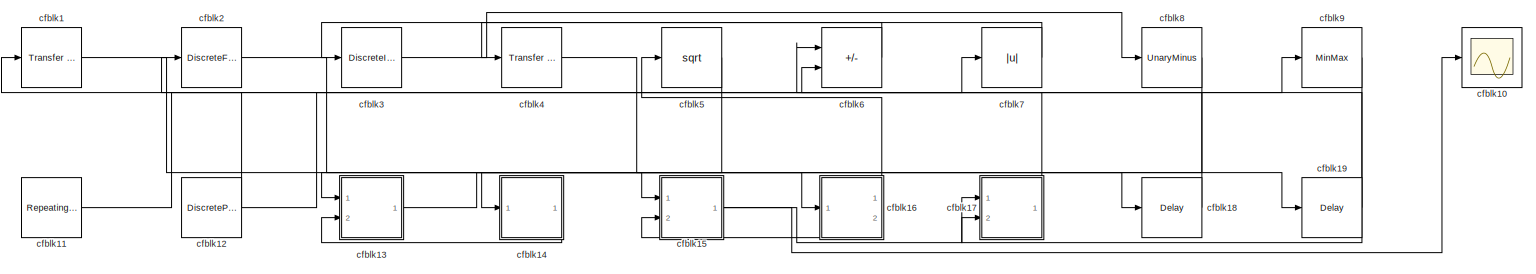
[diagram: root canvas - part 1/1, most of the canvas]
MODEL slx_5b7d6bf338a1
KIND model
CONFIG AbsTol = auto
CONFIG EnableMultiTasking = off
CONFIG FixedStep = auto
CONFIG MaxStep = auto
CONFIG MinStep = auto
CONFIG RelTol = 1e-3
CONFIG SampleTimeConstraint = Unconstrained
CONFIG SolverName = VariableStepAuto
CONFIG StartTime = 0.0
CONFIG StopTime = 10.0
BLOCK [Reference] cfblk1  REF=simulink/Discrete/Transfer Fcn
First Order
  Ports = [1, 1]
  SourceBlock = simulink/Discrete/Transfer Fcn\nFirst Order
  SourceProductBaseCode = SL
  SourceType = First Order Transfer Fcn
BLOCK [Scope] cfblk10
  Floating = off
  NumInputPorts = 1
  Ports = [1]
BLOCK [Reference] cfblk11  REF=simulink/Sources/Repeating
Sequence
  Ports = [0, 1]
  SourceBlock = simulink/Sources/Repeating\nSequence
  SourceProductBaseCode = SL
  SourceType = Repeating table
BLOCK [DiscretePulseGenerator] cfblk12
  Amplitude = [-881362377.739357]
  Period = [75781742.287190]
  PhaseDelay = [9.000000]
  Ports = [0, 1]
  PulseType = Time based
  PulseWidth = 5
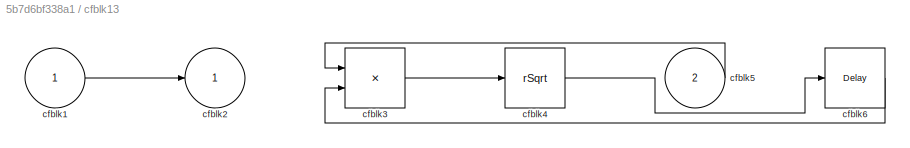
BLOCK [SubSystem] cfblk13
  Ports = [2, 1]
  RequestExecContextInheritance = off
BLOCK [Inport] cfblk13/cfblk1
BLOCK [Outport] cfblk13/cfblk2
BLOCK [Product] cfblk13/cfblk3
  Inputs = **
  Ports = [2, 1]
BLOCK [Sqrt] cfblk13/cfblk4
  AlgorithmType = Newton-Raphson
  Operator = rSqrt
BLOCK [Inport] cfblk13/cfblk5
  Port = 2
BLOCK [Delay] cfblk13/cfblk6
  InputPortMap = u0
  Ports = [1, 1]
  SampleTime = 1
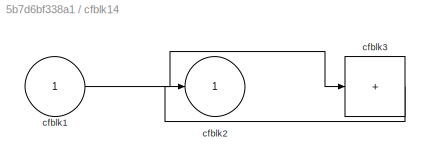
BLOCK [SubSystem] cfblk14
  Ports = [1, 1]
  RequestExecContextInheritance = off
BLOCK [Inport] cfblk14/cfblk1
BLOCK [Outport] cfblk14/cfblk2
BLOCK [Sum] cfblk14/cfblk3
  IconShape = rectangular
  Inputs = +
  Ports = [1, 1]
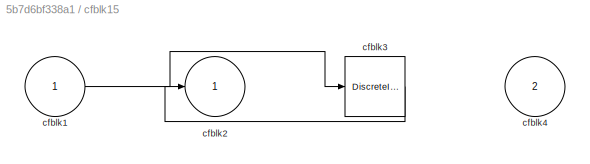
BLOCK [SubSystem] cfblk15
  Ports = [2, 1]
  RequestExecContextInheritance = off
BLOCK [Inport] cfblk15/cfblk1
BLOCK [Outport] cfblk15/cfblk2
BLOCK [DiscreteIntegrator] cfblk15/cfblk3
  ICPrevOutput = DiscIntNeverNeededParam
  ICPrevScaledInput = DiscIntNeverNeededParam
  InitialConditionSetting = Auto
  Ports = [1, 1]
BLOCK [Inport] cfblk15/cfblk4
  Port = 2
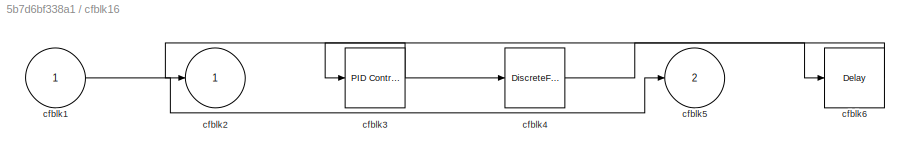
BLOCK [SubSystem] cfblk16
  Ports = [1, 2]
  RequestExecContextInheritance = off
BLOCK [Inport] cfblk16/cfblk1
BLOCK [Outport] cfblk16/cfblk2
BLOCK [Reference] cfblk16/cfblk3  REF=slpidlib/PID Controller
  Ports = [1, 1]
  SourceBlock = slpidlib/PID Controller
  SourceProductBaseCode = SL
  SourceType = PID 1dof
BLOCK [DiscreteFilter] cfblk16/cfblk4
  InputPortMap = u0
  Ports = [1, 1]
  SampleTime = 1
BLOCK [Outport] cfblk16/cfblk5
  Port = 2
BLOCK [Delay] cfblk16/cfblk6
  InputPortMap = u0
  Ports = [1, 1]
  SampleTime = 1
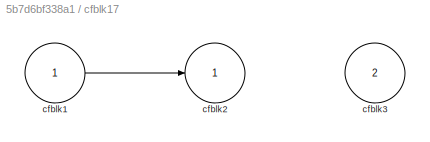
BLOCK [SubSystem] cfblk17
  Ports = [2, 1]
  RequestExecContextInheritance = off
BLOCK [Inport] cfblk17/cfblk1
BLOCK [Outport] cfblk17/cfblk2
BLOCK [Inport] cfblk17/cfblk3
  Port = 2
BLOCK [Delay] cfblk18
  InputPortMap = u0
  Ports = [1, 1]
  SampleTime = 1
BLOCK [Delay] cfblk19
  InputPortMap = u0
  Ports = [1, 1]
  SampleTime = 1
BLOCK [DiscreteFir] cfblk2
  InputPortMap = u0
  OutputPortMap = o0
  Ports = [1, 1]
  SampleTime = 1
BLOCK [DiscreteIntegrator] cfblk3
  ICPrevOutput = DiscIntNeverNeededParam
  ICPrevScaledInput = DiscIntNeverNeededParam
  InitialConditionSetting = Auto
  Ports = [1, 1]
BLOCK [Reference] cfblk4  REF=simulink/Discrete/Transfer Fcn
Lead or Lag
  Ports = [1, 1]
  SourceBlock = simulink/Discrete/Transfer Fcn\nLead or Lag
  SourceProductBaseCode = SL
  SourceType = Lead or Lag Compensator
BLOCK [Sqrt] cfblk5
BLOCK [Sum] cfblk6
  IconShape = rectangular
  Inputs = --
  Ports = [2, 1]
BLOCK [Abs] cfblk7
  SaturateOnIntegerOverflow = off
BLOCK [UnaryMinus] cfblk8
BLOCK [MinMax] cfblk9
  Ports = [1, 1]
LINE cfblk11:1 -> cfblk9:1
NET cfblk12:1 -> cfblk2:1, cfblk7:1
LINE cfblk13/cfblk1:1 -> cfblk13/cfblk2:1
LINE cfblk13/cfblk3:1 -> cfblk13/cfblk4:1
LINE cfblk13/cfblk4:1 -> cfblk13/cfblk6:1
LINE cfblk13/cfblk5:1 -> cfblk13/cfblk3:1
LINE cfblk13/cfblk6:1 -> cfblk13/cfblk3:2
LINE cfblk13:1 -> cfblk18:1
LINE cfblk14/cfblk1:1 -> cfblk14/cfblk3:1
LINE cfblk14/cfblk3:1 -> cfblk14/cfblk2:1
LINE cfblk14:1 -> cfblk13:2
LINE cfblk15/cfblk1:1 -> cfblk15/cfblk3:1
LINE cfblk15/cfblk3:1 -> cfblk15/cfblk2:1
NET cfblk15:1 -> cfblk10:1, cfblk17:2
LINE cfblk16/cfblk1:1 -> cfblk16/cfblk5:1
NET cfblk16/cfblk3:1 -> cfblk16/cfblk2:1, cfblk16/cfblk4:1
LINE cfblk16/cfblk4:1 -> cfblk16/cfblk6:1
LINE cfblk16/cfblk6:1 -> cfblk16/cfblk3:1
LINE cfblk16:1 -> cfblk5:1
LINE cfblk16:2 -> cfblk15:2
LINE cfblk17/cfblk1:1 -> cfblk17/cfblk2:1
LINE cfblk17:1 -> cfblk6:2
LINE cfblk18:1 -> cfblk1:1
LINE cfblk19:1 -> cfblk6:1
LINE cfblk1:1 -> cfblk16:1
LINE cfblk2:1 -> cfblk15:1
LINE cfblk3:1 -> cfblk8:1
LINE cfblk4:1 -> cfblk19:1
LINE cfblk5:1 -> cfblk14:1
LINE cfblk6:1 -> cfblk4:1
LINE cfblk7:1 -> cfblk3:1
LINE cfblk8:1 -> cfblk13:1
LINE cfblk9:1 -> cfblk17:1
note: NET lines group one-source signal fan-out (src -> all destinations, sorted); 1:1 wires keep LINE
